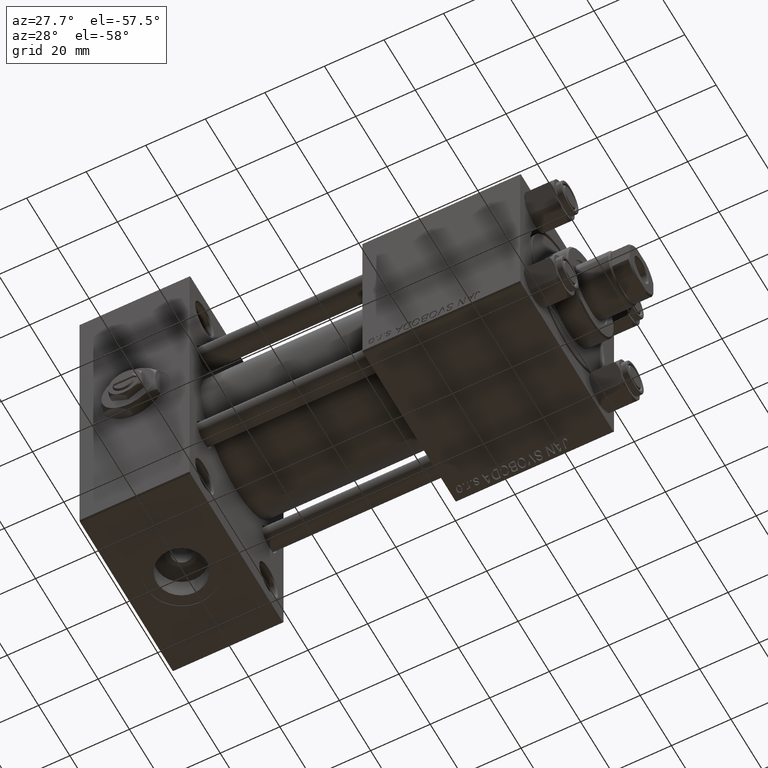
[diagram: clean part render]
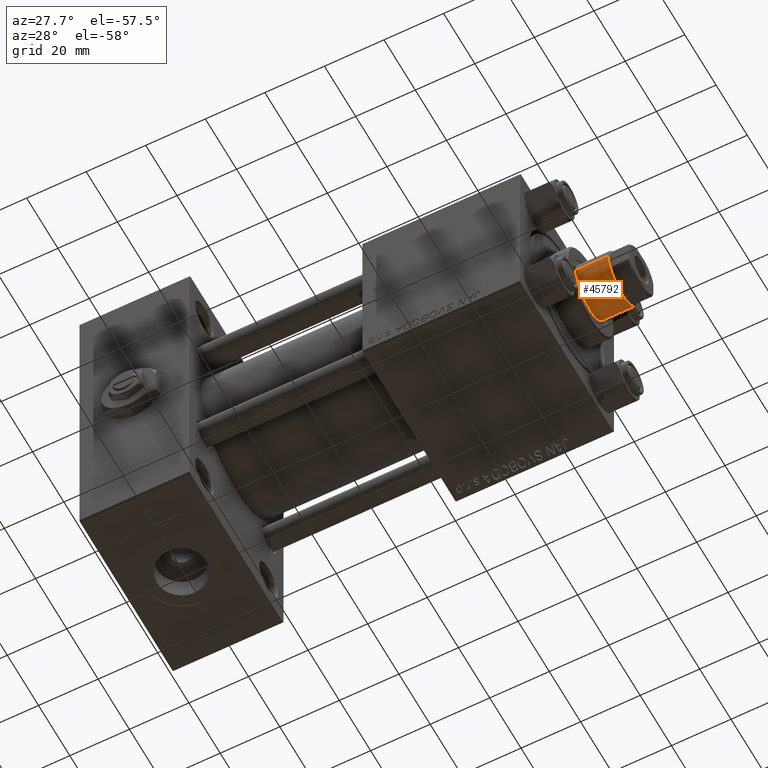
[diagram: same view with one face highlighted and labeled with its STEP entity id]
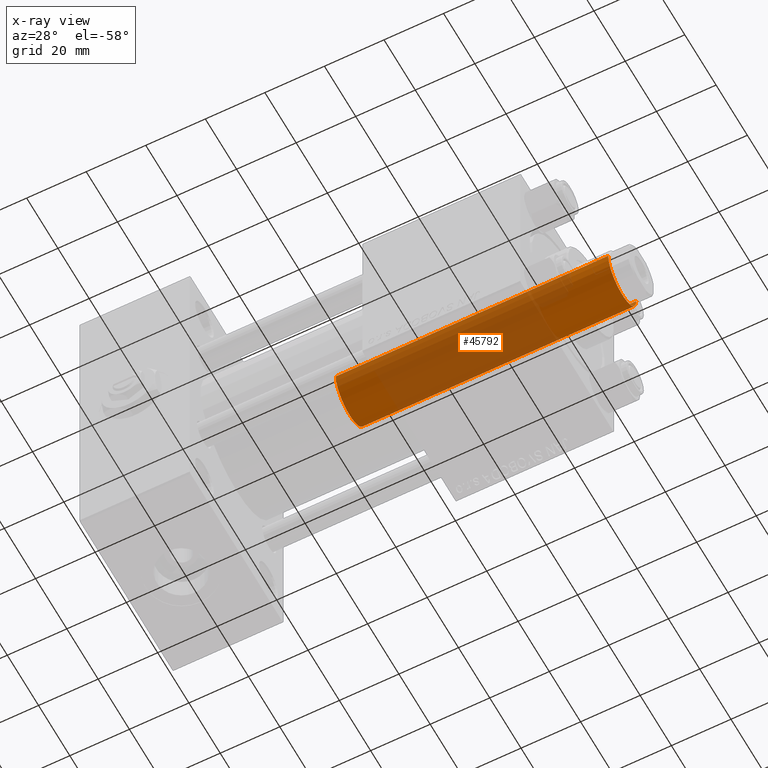
[diagram: x-ray of the same camera — body ghosted, the highlighted face saturated]
A machine part, auxiliary view. The second image highlights one B-rep face of the part: STEP entity #45792.
The next image is the same camera in x-ray: the body ghosted, the highlighted face saturated — about 66% of this face is hidden behind the body in this view.
In plain terms, the highlighted cylindrical surface (edge-blend (fillet) strip) has radius 9 mm, axis along (-1, 0, 0).
Its self-contained STEP definition (entity closure, byte-faithful):
#535 = CARTESIAN_POINT ( 'NONE',  ( 0.000000000000000000, 0.000000000000000000, 129.5000000000000000 ) ) ;
#1241 = EDGE_CURVE ( 'NONE', #18081, #3194, #24987, .T. ) ;
#2204 = VECTOR ( 'NONE', #3612, 1000.000000000000000 ) ;
#3010 = VERTEX_POINT ( 'NONE', #26003 ) ;
#3194 = VERTEX_POINT ( 'NONE', #8926 ) ;
#3612 = DIRECTION ( 'NONE',  ( -0.000000000000000000, -0.000000000000000000, -1.000000000000000000 ) ) ;
#4358 = DIRECTION ( 'NONE',  ( -0.000000000000000000, -0.000000000000000000, -1.000000000000000000 ) ) ;
#4446 = AXIS2_PLACEMENT_3D ( 'NONE', #6648, #35411, #30715 ) ;
#4613 = ORIENTED_EDGE ( 'NONE', *, *, #47859, .T. ) ;
#6500 = CARTESIAN_POINT ( 'NONE',  ( -9.000000000000000000, 0.000000000000000000, 129.5000000000000000 ) ) ;
#6648 = CARTESIAN_POINT ( 'NONE',  ( 0.000000000000000000, 0.000000000000000000, 38.00000000000000000 ) ) ;
#8926 = CARTESIAN_POINT ( 'NONE',  ( 9.000000000000000000, 1.102182119232617714E-15, 129.5000000000000000 ) ) ;
#9106 = AXIS2_PLACEMENT_3D ( 'NONE', #535, #35867, #36658 ) ;
#9353 = LINE ( 'NONE', #17464, #47189 ) ;
#11950 = FACE_OUTER_BOUND ( 'NONE', #17231, .T. ) ;
#15319 = CIRCLE ( 'NONE', #4446, 9.000000000000000000 ) ;
#17231 = EDGE_LOOP ( 'NONE', ( #30997, #37472, #4613, #31552 ) ) ;
#17464 = CARTESIAN_POINT ( 'NONE',  ( -9.000000000000000000, 0.000000000000000000, 130.0000000000000000 ) ) ;
#18081 = VERTEX_POINT ( 'NONE', #6500 ) ;
#19231 = CARTESIAN_POINT ( 'NONE',  ( 9.000000000000000000, 1.102182119232617714E-15, 38.00000000000000000 ) ) ;
#19581 = CARTESIAN_POINT ( 'NONE',  ( 9.000000000000000000, 1.102182119232617714E-15, 130.0000000000000000 ) ) ;
#21663 = DIRECTION ( 'NONE',  ( -0.000000000000000000, -0.000000000000000000, -1.000000000000000000 ) ) ;
#24987 = CIRCLE ( 'NONE', #9106, 9.000000000000000000 ) ;
#25492 = VERTEX_POINT ( 'NONE', #19231 ) ;
#26003 = CARTESIAN_POINT ( 'NONE',  ( -9.000000000000000000, 0.000000000000000000, 38.00000000000000000 ) ) ;
#30715 = DIRECTION ( 'NONE',  ( 1.000000000000000000, 0.000000000000000000, 0.000000000000000000 ) ) ;
#30997 = ORIENTED_EDGE ( 'NONE', *, *, #1241, .T. ) ;
#31552 = ORIENTED_EDGE ( 'NONE', *, *, #50249, .F. ) ;
#35411 = DIRECTION ( 'NONE',  ( 0.000000000000000000, 0.000000000000000000, 1.000000000000000000 ) ) ;
#35867 = DIRECTION ( 'NONE',  ( 0.000000000000000000, 0.000000000000000000, -1.000000000000000000 ) ) ;
#36658 = DIRECTION ( 'NONE',  ( 1.000000000000000000, 0.000000000000000000, 0.000000000000000000 ) ) ;
#37472 = ORIENTED_EDGE ( 'NONE', *, *, #38689, .T. ) ;
#38689 = EDGE_CURVE ( 'NONE', #3194, #25492, #44443, .T. ) ;
#40500 = CYLINDRICAL_SURFACE ( 'NONE', #46788, 9.000000000000000000 ) ;
#44173 = CARTESIAN_POINT ( 'NONE',  ( 0.000000000000000000, 0.000000000000000000, 130.0000000000000000 ) ) ;
#44443 = LINE ( 'NONE', #19581, #2204 ) ;
#45792 = ADVANCED_FACE ( 'NONE', ( #11950 ), #40500, .T. ) ;
#46788 = AXIS2_PLACEMENT_3D ( 'NONE', #44173, #4358, #48624 ) ;
#47189 = VECTOR ( 'NONE', #21663, 1000.000000000000000 ) ;
#47859 = EDGE_CURVE ( 'NONE', #25492, #3010, #15319, .T. ) ;
#48624 = DIRECTION ( 'NONE',  ( -1.000000000000000000, 0.000000000000000000, 0.000000000000000000 ) ) ;
#50249 = EDGE_CURVE ( 'NONE', #18081, #3010, #9353, .T. ) ;